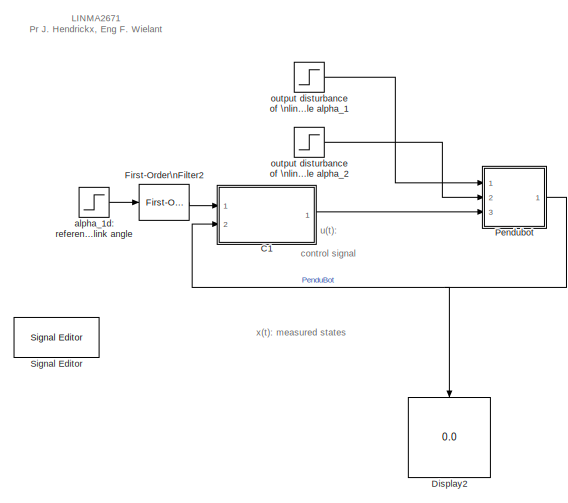
[diagram: root canvas - part 1/2, middle left region]
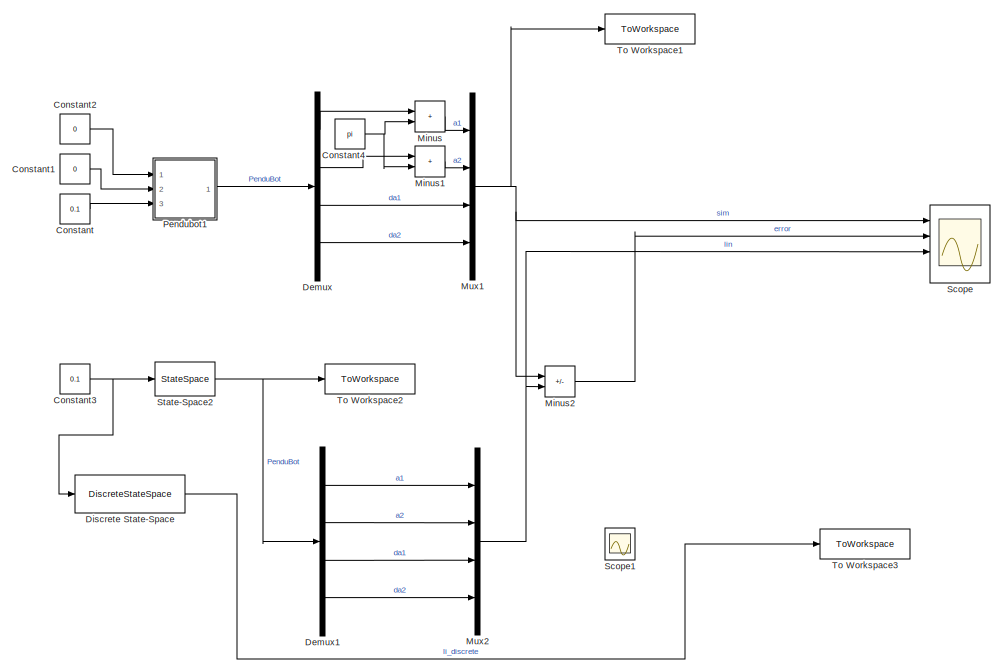
[diagram: root canvas - part 2/2, right side, full height]
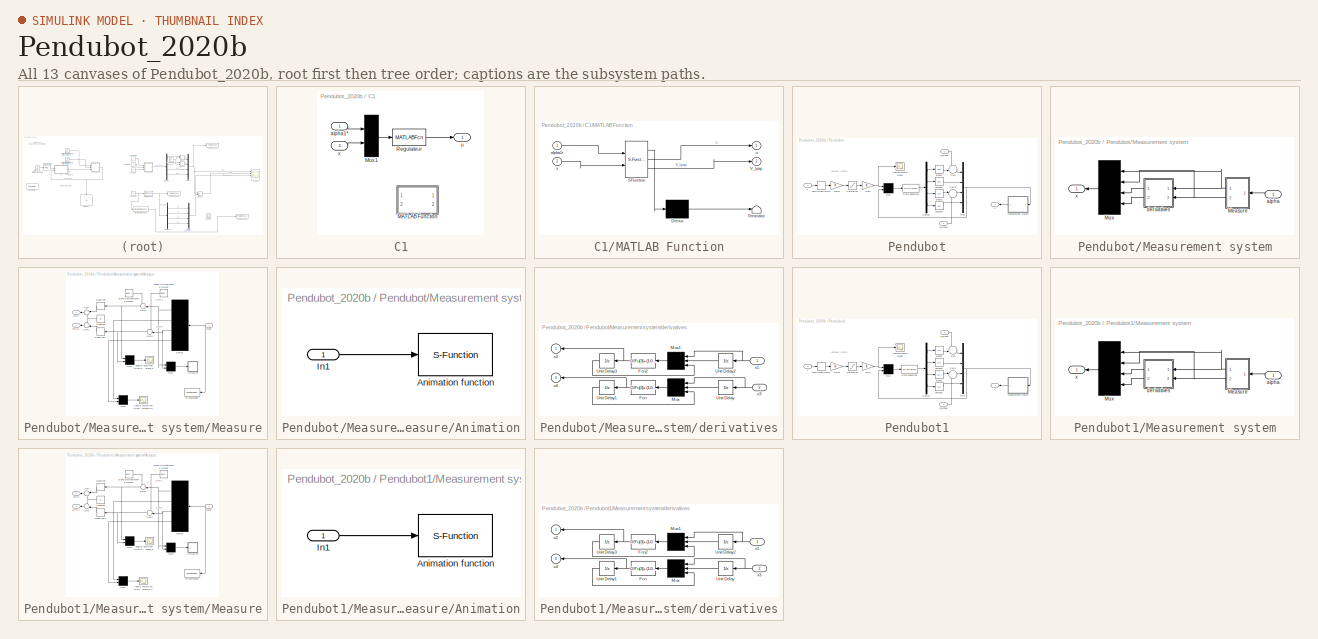
[diagram: thumbnail index - all 13 canvases of the model, root first then tree order]
MODEL Pendubot_2020b
KIND model
BLOCK [SubSystem] C1
  Ports = [2, 1]
  SID = 1
BLOCK [SubSystem] C1/MATLAB Function
  Commented = on
  ErrorFcn = Stateflow.Translate.translate
  PermitHierarchicalResolution = ExplicitOnly
  Ports = [2, 2]
  SFBlockType = MATLAB Function
  SID = 176
  TreatAsAtomicUnit = on
BLOCK [Demux] C1/MATLAB Function/ Demux 
  Outputs = 1
  Ports = [1, 1]
  SID = 176::26
BLOCK [S-Function] C1/MATLAB Function/ SFunction 
  EnableBusSupport = on
  FunctionName = sf_sfun
  PortCounts = [2 3]
  Ports = [2, 3]
  SFcnIsStateOwnerBlock = off
  SFunctionDeploymentMode = off
  SID = 176::25
  Tag = Stateflow S-Function 2
BLOCK [Terminator] C1/MATLAB Function/ Terminator 
  SID = 176::27
BLOCK [Outport] C1/MATLAB Function/V_lyap
  Port = 2
  SID = 176::29
BLOCK [Inport] C1/MATLAB Function/alpha1r
  SID = 176::1
BLOCK [Outport] C1/MATLAB Function/u
  SID = 176::5
BLOCK [Inport] C1/MATLAB Function/x
  Port = 2
  SID = 176::28
BLOCK [Mux] C1/Mux1
  Inputs = 2
  Ports = [2, 1]
  SID = 4
BLOCK [MATLABFcn] C1/Regulateur
  MATLABFcn = pendubot_reg(u(1),[u(2),u(3),u(4),u(5)])
  Ports = [1, 1]
  SID = 5
BLOCK [Inport] C1/alpha1*
  SID = 2
BLOCK [Outport] C1/u
  SID = 6
BLOCK [Inport] C1/x
  Port = 2
  SID = 3
BLOCK [Constant] Constant
  Commented = on
  SID = 143
  Value = 0.1
BLOCK [Constant] Constant1
  Commented = on
  SID = 144
  Value = 0
BLOCK [Constant] Constant2
  Commented = on
  SID = 145
  Value = 0
BLOCK [Constant] Constant3
  Commented = on
  SID = 147
  Value = 0.1
BLOCK [Constant] Constant4
  Commented = on
  SID = 155
  Value = pi
BLOCK [Demux] Demux
  Commented = on
  DisplayOption = none
  Ports = [1, 4]
  SID = 152
BLOCK [Demux] Demux1
  Commented = on
  DisplayOption = none
  Ports = [1, 4]
  SID = 159
BLOCK [DiscreteStateSpace] Discrete State-Space
  A = [0.9993,0.0004,0.004,0;0.0014,0.9987,0,0.004;-0.3693,0.2122,0.9993,0.0004;0.7023,-0.6366,0.0014,0.9987]
  B = [0.0004;-0.0007;0.1859;-0.3535]
  C = eye(4)
  Commented = on
  D = [0;0;0;0]
  SID = 167
  SampleTime = Ts
BLOCK [Display] Display2
  Decimation = 1
  NameLocation = left
  Ports = [1]
  SID = 296
BLOCK [Reference] First-Order\nFilter2  REF=powerlib_meascontrol/Filters/First-Order Filter
  FilterType = Lowpass
  FreqRange = [0,  200,  1]
  Initialize = on
  PlotResponse = off
  Ports = [1, 1]
  RTWMemSecDataConstants = Inherit from model
  RTWMemSecDataInternal = Inherit from model
  RTWMemSecDataParameters = Inherit from model
  RTWMemSecFuncExecute = Inherit from model
  RTWMemSecFuncInitTerm = Inherit from model
  SID = 172
  SourceBlock = powerlib_meascontrol/Filters/First-Order Filter
  SourceType = First-Order Filter
  Tc = 5
  Ts = 0
  Vac_Init = [0, 0, 60]
  Vdc_Init = 0
BLOCK [Sum] Minus
  Commented = on
  IconShape = rectangular
  Ports = [2, 1]
  SID = 154
BLOCK [Sum] Minus1
  Commented = on
  IconShape = rectangular
  Ports = [2, 1]
  SID = 156
BLOCK [Sum] Minus2
  Commented = on
  IconShape = rectangular
  Inputs = +-
  Ports = [2, 1]
  SID = 163
BLOCK [Mux] Mux1
  Commented = on
  DisplayOption = bar
  Ports = [4, 1]
  SID = 153
BLOCK [Mux] Mux2
  Commented = on
  DisplayOption = bar
  Ports = [4, 1]
  SID = 162
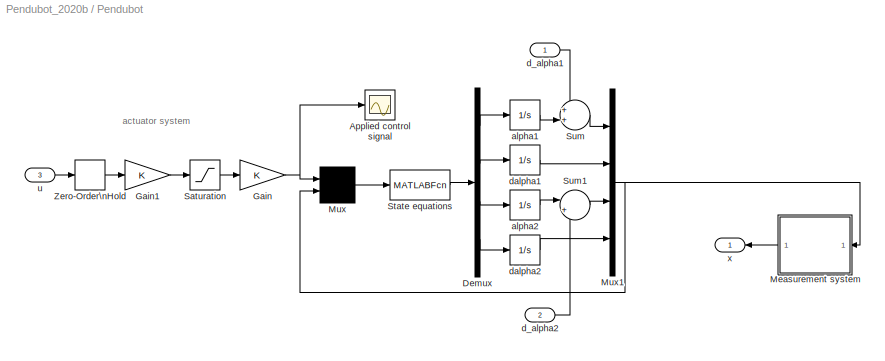
BLOCK [SubSystem] Pendubot
  Ports = [3, 1]
  SID = 7
BLOCK [Scope] Pendubot/Applied control signal
  Floating = off
  NumInputPorts = 1
  Ports = [1]
  SID = 11
  ScopeSpecificationString = Simulink.scopes.TimeScopeBlockCfg('CurrentConfiguration', extmgr.ConfigurationSet(extmgr.Configuration('Core','General UI',true),extmgr.Configuration('Core','Source UI',true),extmgr.Configuration('Sources','WiredSimulink',true,'DataLoggingLimitDataPoints',true,'DataLoggingSaveFormat','Array','DataLoggingDecimation','1','DataLoggingDecimateData',true),extmgr.Configuration('Visuals','Time Domain',tr...<+1637ch>
BLOCK [Demux] Pendubot/Demux
  DisplayOption = none
  Ports = [1, 4]
  SID = 12
BLOCK [Gain] Pendubot/Gain
  OutDataTypeStr = Inherit: Same as input
  ParamDataTypeStr = Inherit: Same as input
  SID = 13
  SaturateOnIntegerOverflow = on
BLOCK [Gain] Pendubot/Gain1
  OutDataTypeStr = Inherit: Same as input
  ParamDataTypeStr = Inherit: Same as input
  SID = 14
  SaturateOnIntegerOverflow = on
BLOCK [SubSystem] Pendubot/Measurement system
  Ports = [1, 1]
  SID = 15
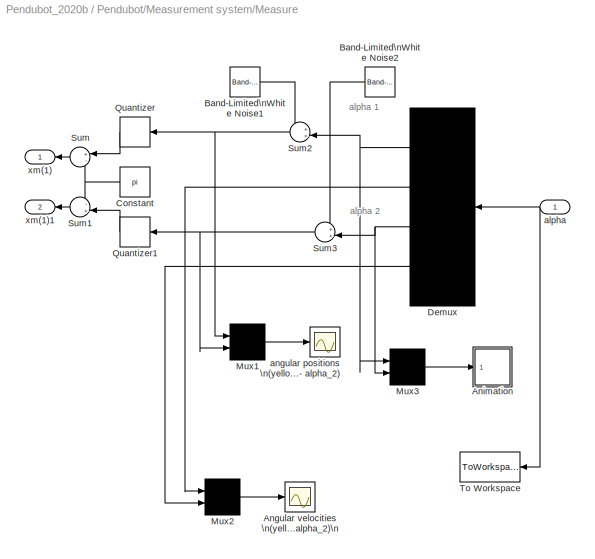
BLOCK [SubSystem] Pendubot/Measurement system/Measure
  Ports = [1, 2]
  SID = 17
BLOCK [Scope] Pendubot/Measurement system/Measure/Angular velocities \n(yellow - for alpha_1, \nmagenta - for alpha_2)\n
  Floating = off
  NumInputPorts = 1
  Ports = [1]
  SID = 19
  ScopeSpecificationString = C++SS(StrPVP('Location','[1351, 455, 1837, 694]'),StrPVP('Open','off'),StrPVP('TickLabels','on'),MxPVP('AxesTitles',54,'struct(''axes1'',''%<SignalLabel>'')'),StrPVP('ShowLegends','off'),StrPVP('YMin','-3.5'),StrPVP('YMax','3.5'),StrPVP('BlockParamSampleTime','0'),StrPVP('LimitDataPoints','on'),StrPVP('DataFormat','Array'),StrPVP('Decimation','1'),StrPVP('BlockParamSampleInput','off'))
BLOCK [SubSystem] Pendubot/Measurement system/Measure/Animation
  Ports = [1]
  SID = 20
BLOCK [S-Function] Pendubot/Measurement system/Measure/Animation/Animation function
  DeleteFcn = if ~isempty(findobj('type','figure','name','simppend Animation'));close('simppend Animation'); end;
  EnableBusSupport = off
  FunctionName = pendubotanim
  Parameters = ts
  Ports = [1]
  SFcnIsStateOwnerBlock = off
  SFunctionDeploymentMode = off
  SID = 22
BLOCK [Inport] Pendubot/Measurement system/Measure/Animation/In1
  SID = 21
BLOCK [Reference] Pendubot/Measurement system/Measure/Band-Limited\nWhite Noise1  REF=simulink/Sources/Band-Limited\nWhite Noise
  Cov = [1e-8]
  Ports = [0, 1]
  RTWMemSecDataConstants = Inherit from model
  RTWMemSecDataInternal = Inherit from model
  RTWMemSecDataParameters = Inherit from model
  RTWMemSecFuncExecute = Inherit from model
  RTWMemSecFuncInitTerm = Inherit from model
  SID = 23
  SourceBlock = simulink/Sources/Band-Limited\nWhite Noise
  SourceType = Band-Limited White Noise.
  Ts = Ts
  VectorParams1D = on
  seed = [23341]
BLOCK [Reference] Pendubot/Measurement system/Measure/Band-Limited\nWhite Noise2  REF=simulink/Sources/Band-Limited\nWhite Noise
  Cov = [1e-7]
  NameLocation = top
  Ports = [0, 1]
  RTWMemSecDataConstants = Inherit from model
  RTWMemSecDataInternal = Inherit from model
  RTWMemSecDataParameters = Inherit from model
  RTWMemSecFuncExecute = Inherit from model
  RTWMemSecFuncInitTerm = Inherit from model
  SID = 24
  SourceBlock = simulink/Sources/Band-Limited\nWhite Noise
  SourceType = Band-Limited White Noise.
  Ts = Ts
  VectorParams1D = on
  seed = [32214]
BLOCK [Constant] Pendubot/Measurement system/Measure/Constant
  SID = 25
  Value = pi
BLOCK [Demux] Pendubot/Measurement system/Measure/Demux
  DisplayOption = none
  Ports = [1, 4]
  SID = 26
BLOCK [Mux] Pendubot/Measurement system/Measure/Mux1
  Inputs = 2
  Ports = [2, 1]
  SID = 27
BLOCK [Mux] Pendubot/Measurement system/Measure/Mux2
  Inputs = 2
  Ports = [2, 1]
  SID = 28
BLOCK [Mux] Pendubot/Measurement system/Measure/Mux3
  Inputs = 2
  Ports = [2, 1]
  SID = 29
BLOCK [Quantizer] Pendubot/Measurement system/Measure/Quantizer
  QuantizationInterval = 2*pi/5000
  SID = 30
BLOCK [Quantizer] Pendubot/Measurement system/Measure/Quantizer1
  QuantizationInterval = 2*pi/5000
  SID = 31
BLOCK [Sum] Pendubot/Measurement system/Measure/Sum
  InputSameDT = on
  Inputs = +-
  OutDataTypeStr = Inherit: Same as first input
  Ports = [2, 1]
  SID = 32
  SaturateOnIntegerOverflow = on
BLOCK [Sum] Pendubot/Measurement system/Measure/Sum1
  InputSameDT = on
  Inputs = -+
  OutDataTypeStr = Inherit: Same as first input
  Ports = [2, 1]
  SID = 33
  SaturateOnIntegerOverflow = on
BLOCK [Sum] Pendubot/Measurement system/Measure/Sum2
  InputSameDT = on
  Inputs = ++|
  NameLocation = top
  OutDataTypeStr = Inherit: Same as first input
  Ports = [2, 1]
  SID = 34
  SaturateOnIntegerOverflow = on
BLOCK [Sum] Pendubot/Measurement system/Measure/Sum3
  InputSameDT = on
  Inputs = ++|
  NameLocation = top
  OutDataTypeStr = Inherit: Same as first input
  Ports = [2, 1]
  SID = 35
  SaturateOnIntegerOverflow = on
BLOCK [ToWorkspace] Pendubot/Measurement system/Measure/To Workspace
  MaxDataPoints = inf
  Ports = [1]
  SID = 36
  SampleTime = Ts
  VariableName = alpha
BLOCK [Inport] Pendubot/Measurement system/Measure/alpha
  SID = 18
BLOCK [Scope] Pendubot/Measurement system/Measure/angular positions \n(yellow - alpha_1, \nmagenta - alpha_2)
  Floating = off
  NumInputPorts = 1
  Ports = [1]
  SID = 37
  ScopeSpecificationString = C++SS(StrPVP('Location','[881, 350, 1368, 572]'),StrPVP('Open','off'),StrPVP('TickLabels','on'),MxPVP('AxesTitles',54,'struct(''axes1'',''%<SignalLabel>'')'),StrPVP('ShowLegends','off'),StrPVP('YMin','1.5'),StrPVP('YMax','6'),StrPVP('BlockParamSampleTime','0'),StrPVP('LimitDataPoints','on'),StrPVP('DataFormat','Array'),StrPVP('Decimation','1'),StrPVP('BlockParamSampleInput','off'))
BLOCK [Outport] Pendubot/Measurement system/Measure/xm(1)
  SID = 38
  Tag = alpha1
BLOCK [Outport] Pendubot/Measurement system/Measure/xm(1)1
  Port = 2
  SID = 39
BLOCK [Mux] Pendubot/Measurement system/Mux
  Ports = [4, 1]
  SID = 42
BLOCK [Inport] Pendubot/Measurement system/alpha
  SID = 16
BLOCK [SubSystem] Pendubot/Measurement system/derivatives
  Ports = [2, 2]
  SID = 43
BLOCK [Fcn] Pendubot/Measurement system/derivatives/Fcn
  Expr = 0.9*u[3]+(1-0.9)/0.003*(u[1]-u[2])
  SID = 46
BLOCK [Fcn] Pendubot/Measurement system/derivatives/Fcn2
  Expr = 0.9*u[3]+(1-0.9)/0.003*(u[1]-u[2])
  SID = 47
BLOCK [Mux] Pendubot/Measurement system/derivatives/Mux
  Inputs = 3
  Ports = [3, 1]
  SID = 48
BLOCK [Mux] Pendubot/Measurement system/derivatives/Mux1
  Inputs = 3
  Ports = [3, 1]
  SID = 49
BLOCK [UnitDelay] Pendubot/Measurement system/derivatives/Unit Delay
  HasFrameUpgradeWarning = on
  SID = 50
  SampleTime = Ts
BLOCK [UnitDelay] Pendubot/Measurement system/derivatives/Unit Delay1
  HasFrameUpgradeWarning = on
  SID = 51
  SampleTime = Ts
BLOCK [UnitDelay] Pendubot/Measurement system/derivatives/Unit Delay2
  HasFrameUpgradeWarning = on
  SID = 52
  SampleTime = Ts
BLOCK [UnitDelay] Pendubot/Measurement system/derivatives/Unit Delay3
  HasFrameUpgradeWarning = on
  SID = 53
  SampleTime = Ts
BLOCK [Inport] Pendubot/Measurement system/derivatives/x1
  SID = 44
BLOCK [Outport] Pendubot/Measurement system/derivatives/x2
  SID = 54
BLOCK [Inport] Pendubot/Measurement system/derivatives/x3
  Port = 2
  SID = 45
BLOCK [Outport] Pendubot/Measurement system/derivatives/x4
  Port = 2
  SID = 55
BLOCK [Outport] Pendubot/Measurement system/x
  SID = 56
BLOCK [Mux] Pendubot/Mux
  Inputs = 2
  Ports = [2, 1]
  SID = 57
BLOCK [Mux] Pendubot/Mux1
  DisplayOption = bar
  Ports = [4, 1]
  SID = 58
BLOCK [Saturate] Pendubot/Saturation
  LowerLimit = -10
  SID = 59
  UpperLimit = 10
BLOCK [MATLABFcn] Pendubot/State equations
  MATLABFcn = pendubot_eqt(u(1),[u(2);u(3);u(4);u(5)])
  OutputDimensions = 4
  Ports = [1, 1]
  SID = 60
BLOCK [Sum] Pendubot/Sum
  InputSameDT = on
  Inputs = ++|
  OutDataTypeStr = Inherit: Same as first input
  Ports = [2, 1]
  SID = 61
  SaturateOnIntegerOverflow = on
BLOCK [Sum] Pendubot/Sum1
  InputSameDT = on
  Inputs = |++
  OutDataTypeStr = Inherit: Same as first input
  Ports = [2, 1]
  SID = 62
  SaturateOnIntegerOverflow = on
BLOCK [ZeroOrderHold] Pendubot/Zero-Order\nHold
  SID = 63
  SampleTime = Ts
BLOCK [Integrator] Pendubot/alpha1
  InitialCondition = x10
  Ports = [1, 1]
  SID = 64
BLOCK [Integrator] Pendubot/alpha2
  InitialCondition = x30
  Ports = [1, 1]
  SID = 65
BLOCK [Inport] Pendubot/d_alpha1
  SID = 8
BLOCK [Inport] Pendubot/d_alpha2
  Port = 2
  SID = 9
BLOCK [Integrator] Pendubot/dalpha1
  InitialCondition = x20
  Ports = [1, 1]
  SID = 66
BLOCK [Integrator] Pendubot/dalpha2
  InitialCondition = x40
  Ports = [1, 1]
  SID = 67
BLOCK [Inport] Pendubot/u
  Port = 3
  SID = 10
BLOCK [Outport] Pendubot/x
  SID = 68
BLOCK [SubSystem] Pendubot1
  Commented = on
  Ports = [3, 1]
  SID = 80
BLOCK [Scope] Pendubot1/Applied control signal
  Floating = off
  NumInputPorts = 1
  Ports = [1]
  SID = 84
  ScopeSpecificationString = Simulink.scopes.TimeScopeBlockCfg('CurrentConfiguration', extmgr.ConfigurationSet(extmgr.Configuration('Core','General UI',true),extmgr.Configuration('Core','Source UI',true),extmgr.Configuration('Sources','WiredSimulink',true,'DataLoggingLimitDataPoints',true,'DataLoggingSaveFormat','Array','DataLoggingDecimation','1','DataLoggingDecimateData',true),extmgr.Configuration('Visuals','Time Domain',tr...<+1637ch>
BLOCK [Demux] Pendubot1/Demux
  DisplayOption = none
  Ports = [1, 4]
  SID = 85
BLOCK [Gain] Pendubot1/Gain
  OutDataTypeStr = Inherit: Same as input
  ParamDataTypeStr = Inherit: Same as input
  SID = 86
  SaturateOnIntegerOverflow = on
BLOCK [Gain] Pendubot1/Gain1
  OutDataTypeStr = Inherit: Same as input
  ParamDataTypeStr = Inherit: Same as input
  SID = 87
  SaturateOnIntegerOverflow = on
BLOCK [SubSystem] Pendubot1/Measurement system
  Ports = [1, 1]
  SID = 88
BLOCK [SubSystem] Pendubot1/Measurement system/Measure
  Ports = [1, 2]
  SID = 90
BLOCK [Scope] Pendubot1/Measurement system/Measure/Angular velocities \n(yellow - for alpha_1, \nmagenta - for alpha_2)\n
  Floating = off
  NumInputPorts = 1
  Ports = [1]
  SID = 92
  ScopeSpecificationString = C++SS(StrPVP('Location','[1351, 455, 1837, 694]'),StrPVP('Open','off'),StrPVP('TickLabels','on'),MxPVP('AxesTitles',54,'struct(''axes1'',''%<SignalLabel>'')'),StrPVP('ShowLegends','off'),StrPVP('YMin','-3.5'),StrPVP('YMax','3.5'),StrPVP('BlockParamSampleTime','0'),StrPVP('LimitDataPoints','on'),StrPVP('DataFormat','Array'),StrPVP('Decimation','1'),StrPVP('BlockParamSampleInput','off'))
BLOCK [SubSystem] Pendubot1/Measurement system/Measure/Animation
  Ports = [1]
  SID = 93
BLOCK [S-Function] Pendubot1/Measurement system/Measure/Animation/Animation function
  DeleteFcn = if ~isempty(findobj('type','figure','name','simppend Animation'));close('simppend Animation'); end;
  EnableBusSupport = off
  FunctionName = pendubotanim
  Parameters = ts
  Ports = [1]
  SFcnIsStateOwnerBlock = off
  SFunctionDeploymentMode = off
  SID = 95
BLOCK [Inport] Pendubot1/Measurement system/Measure/Animation/In1
  SID = 94
BLOCK [Reference] Pendubot1/Measurement system/Measure/Band-Limited\nWhite Noise1  REF=simulink/Sources/Band-Limited\nWhite Noise
  Cov = [1e-8]
  Ports = [0, 1]
  RTWMemSecDataConstants = Inherit from model
  RTWMemSecDataInternal = Inherit from model
  RTWMemSecDataParameters = Inherit from model
  RTWMemSecFuncExecute = Inherit from model
  RTWMemSecFuncInitTerm = Inherit from model
  SID = 96
  SourceBlock = simulink/Sources/Band-Limited\nWhite Noise
  SourceType = Band-Limited White Noise.
  Ts = Ts
  VectorParams1D = on
  seed = [23341]
BLOCK [Reference] Pendubot1/Measurement system/Measure/Band-Limited\nWhite Noise2  REF=simulink/Sources/Band-Limited\nWhite Noise
  Cov = [1e-7]
  NameLocation = top
  Ports = [0, 1]
  RTWMemSecDataConstants = Inherit from model
  RTWMemSecDataInternal = Inherit from model
  RTWMemSecDataParameters = Inherit from model
  RTWMemSecFuncExecute = Inherit from model
  RTWMemSecFuncInitTerm = Inherit from model
  SID = 97
  SourceBlock = simulink/Sources/Band-Limited\nWhite Noise
  SourceType = Band-Limited White Noise.
  Ts = Ts
  VectorParams1D = on
  seed = [32214]
BLOCK [Constant] Pendubot1/Measurement system/Measure/Constant
  SID = 98
  Value = pi
BLOCK [Demux] Pendubot1/Measurement system/Measure/Demux
  DisplayOption = none
  Ports = [1, 4]
  SID = 99
BLOCK [Mux] Pendubot1/Measurement system/Measure/Mux1
  Inputs = 2
  Ports = [2, 1]
  SID = 100
BLOCK [Mux] Pendubot1/Measurement system/Measure/Mux2
  Inputs = 2
  Ports = [2, 1]
  SID = 101
BLOCK [Mux] Pendubot1/Measurement system/Measure/Mux3
  Inputs = 2
  Ports = [2, 1]
  SID = 102
BLOCK [Quantizer] Pendubot1/Measurement system/Measure/Quantizer
  QuantizationInterval = 2*pi/5000
  SID = 103
BLOCK [Quantizer] Pendubot1/Measurement system/Measure/Quantizer1
  QuantizationInterval = 2*pi/5000
  SID = 104
BLOCK [Sum] Pendubot1/Measurement system/Measure/Sum
  InputSameDT = on
  Inputs = +-
  OutDataTypeStr = Inherit: Same as first input
  Ports = [2, 1]
  SID = 105
  SaturateOnIntegerOverflow = on
BLOCK [Sum] Pendubot1/Measurement system/Measure/Sum1
  InputSameDT = on
  Inputs = -+
  OutDataTypeStr = Inherit: Same as first input
  Ports = [2, 1]
  SID = 106
  SaturateOnIntegerOverflow = on
BLOCK [Sum] Pendubot1/Measurement system/Measure/Sum2
  InputSameDT = on
  Inputs = ++|
  NameLocation = top
  OutDataTypeStr = Inherit: Same as first input
  Ports = [2, 1]
  SID = 107
  SaturateOnIntegerOverflow = on
BLOCK [Sum] Pendubot1/Measurement system/Measure/Sum3
  InputSameDT = on
  Inputs = ++|
  NameLocation = top
  OutDataTypeStr = Inherit: Same as first input
  Ports = [2, 1]
  SID = 108
  SaturateOnIntegerOverflow = on
BLOCK [ToWorkspace] Pendubot1/Measurement system/Measure/To Workspace
  MaxDataPoints = inf
  Ports = [1]
  SID = 109
  SampleTime = Ts
  VariableName = alpha
BLOCK [Inport] Pendubot1/Measurement system/Measure/alpha
  SID = 91
BLOCK [Scope] Pendubot1/Measurement system/Measure/angular positions \n(yellow - alpha_1, \nmagenta - alpha_2)
  Floating = off
  NumInputPorts = 1
  Ports = [1]
  SID = 110
  ScopeSpecificationString = C++SS(StrPVP('Location','[881, 350, 1368, 572]'),StrPVP('Open','off'),StrPVP('TickLabels','on'),MxPVP('AxesTitles',54,'struct(''axes1'',''%<SignalLabel>'')'),StrPVP('ShowLegends','off'),StrPVP('YMin','1.5'),StrPVP('YMax','6'),StrPVP('BlockParamSampleTime','0'),StrPVP('LimitDataPoints','on'),StrPVP('DataFormat','Array'),StrPVP('Decimation','1'),StrPVP('BlockParamSampleInput','off'))
BLOCK [Outport] Pendubot1/Measurement system/Measure/xm(1)
  SID = 111
  Tag = alpha1
BLOCK [Outport] Pendubot1/Measurement system/Measure/xm(1)1
  Port = 2
  SID = 112
BLOCK [Mux] Pendubot1/Measurement system/Mux
  Ports = [4, 1]
  SID = 115
BLOCK [Inport] Pendubot1/Measurement system/alpha
  SID = 89
BLOCK [SubSystem] Pendubot1/Measurement system/derivatives
  Ports = [2, 2]
  SID = 116
BLOCK [Fcn] Pendubot1/Measurement system/derivatives/Fcn
  Expr = 0.9*u[3]+(1-0.9)/0.003*(u[1]-u[2])
  SID = 119
BLOCK [Fcn] Pendubot1/Measurement system/derivatives/Fcn2
  Expr = 0.9*u[3]+(1-0.9)/0.003*(u[1]-u[2])
  SID = 120
BLOCK [Mux] Pendubot1/Measurement system/derivatives/Mux
  Inputs = 3
  Ports = [3, 1]
  SID = 121
BLOCK [Mux] Pendubot1/Measurement system/derivatives/Mux1
  Inputs = 3
  Ports = [3, 1]
  SID = 122
BLOCK [UnitDelay] Pendubot1/Measurement system/derivatives/Unit Delay
  HasFrameUpgradeWarning = on
  SID = 123
  SampleTime = Ts
BLOCK [UnitDelay] Pendubot1/Measurement system/derivatives/Unit Delay1
  HasFrameUpgradeWarning = on
  SID = 124
  SampleTime = Ts
BLOCK [UnitDelay] Pendubot1/Measurement system/derivatives/Unit Delay2
  HasFrameUpgradeWarning = on
  SID = 125
  SampleTime = Ts
BLOCK [UnitDelay] Pendubot1/Measurement system/derivatives/Unit Delay3
  HasFrameUpgradeWarning = on
  SID = 126
  SampleTime = Ts
BLOCK [Inport] Pendubot1/Measurement system/derivatives/x1
  SID = 117
BLOCK [Outport] Pendubot1/Measurement system/derivatives/x2
  SID = 127
BLOCK [Inport] Pendubot1/Measurement system/derivatives/x3
  Port = 2
  SID = 118
BLOCK [Outport] Pendubot1/Measurement system/derivatives/x4
  Port = 2
  SID = 128
BLOCK [Outport] Pendubot1/Measurement system/x
  SID = 129
BLOCK [Mux] Pendubot1/Mux
  Inputs = 2
  Ports = [2, 1]
  SID = 130
BLOCK [Mux] Pendubot1/Mux1
  DisplayOption = bar
  Ports = [4, 1]
  SID = 131
BLOCK [Saturate] Pendubot1/Saturation
  LowerLimit = -10
  SID = 132
  UpperLimit = 10
BLOCK [MATLABFcn] Pendubot1/State equations
  MATLABFcn = pendubot_eqt(u(1),[u(2);u(3);u(4);u(5)])
  OutputDimensions = 4
  Ports = [1, 1]
  SID = 133
BLOCK [Sum] Pendubot1/Sum
  InputSameDT = on
  Inputs = ++|
  OutDataTypeStr = Inherit: Same as first input
  Ports = [2, 1]
  SID = 134
  SaturateOnIntegerOverflow = on
BLOCK [Sum] Pendubot1/Sum1
  InputSameDT = on
  Inputs = |++
  OutDataTypeStr = Inherit: Same as first input
  Ports = [2, 1]
  SID = 135
  SaturateOnIntegerOverflow = on
BLOCK [ZeroOrderHold] Pendubot1/Zero-Order\nHold
  SID = 136
  SampleTime = Ts
BLOCK [Integrator] Pendubot1/alpha1
  InitialCondition = x10
  Ports = [1, 1]
  SID = 137
BLOCK [Integrator] Pendubot1/alpha2
  InitialCondition = x30
  Ports = [1, 1]
  SID = 138
BLOCK [Inport] Pendubot1/d_alpha1
  SID = 81
BLOCK [Inport] Pendubot1/d_alpha2
  Port = 2
  SID = 82
BLOCK [Integrator] Pendubot1/dalpha1
  InitialCondition = x20
  Ports = [1, 1]
  SID = 139
BLOCK [Integrator] Pendubot1/dalpha2
  InitialCondition = x40
  Ports = [1, 1]
  SID = 140
BLOCK [Inport] Pendubot1/u
  Port = 3
  SID = 83
BLOCK [Outport] Pendubot1/x
  SID = 141
BLOCK [Scope] Scope
  Commented = on
  Floating = off
  NumInputPorts = 4
  Ports = [4]
  SID = 166
  ScopeSpecificationString = Simulink.scopes.TimeScopeBlockCfg('CurrentConfiguration', extmgr.ConfigurationSet(extmgr.Configuration('Core','General UI',true),extmgr.Configuration('Core','Source UI',true),extmgr.Configuration('Sources','WiredSimulink',true,'DataLoggingSaveFormat','StructureWithTime','DataLoggingMaxPoints','100000','DataLoggingDecimation','10','DataLoggingDecimateData',true,'DataLoggingLimitDataPoints',true,'Da...<+3348ch>
BLOCK [Scope] Scope1
  Commented = on
  Floating = off
  NumInputPorts = 1
  Ports = [1]
  SID = 150
  ScopeSpecificationString = Simulink.scopes.TimeScopeBlockCfg('CurrentConfiguration', extmgr.ConfigurationSet(extmgr.Configuration('Core','General UI',true),extmgr.Configuration('Core','Source UI',true),extmgr.Configuration('Sources','WiredSimulink',true,'DataLoggingVariableName','ScopeData2'),extmgr.Configuration('Visuals','Time Domain',true,'SerializedDisplays',{struct('MinYLimReal','-5.03575','MaxYLimReal','11.63091','YLa...<+1483ch>
BLOCK [Reference] Signal Editor  REF=SignalEditorBlockLib/Signal Editor
  ActiveScenario = Scenario
  ActiveSignal = Signal 1
  Commented = on
  FileName = untitled.mat
  Interpolate = off
  IsBus = off
  OutputAfterFinalValue = Setting to zero
  OutputBusObjectStr = Bus: BusObject
  Ports = [0, 1]
  PreserveSignalName = on
  RTWMemSecDataConstants = Inherit from model
  RTWMemSecDataInternal = Inherit from model
  RTWMemSecDataParameters = Inherit from model
  RTWMemSecFuncExecute = Inherit from model
  RTWMemSecFuncInitTerm = Inherit from model
  SID = 174
  SampleTime = 0
  SourceBlock = SignalEditorBlockLib/Signal Editor
  SourceType = SignalEditor
  Unit = inherit
  UserData = DataTag0
  UserDataPersistent = on
  ZeroCross = off
BLOCK [StateSpace] State-Space2
  A = [0,0,1,0;0,0,0,1;57.9843,-34.6580,0,0;-87.489,105.4244,0,0]
  B = [0;0;40.9835;-70.8893]
  C = eye(4)
  Commented = on
  D = [0;0;0;0]
  InitialCondition = [0;0;0;0]
  Ports = [1, 1]
  SID = 169
BLOCK [ToWorkspace] To Workspace1
  Commented = on
  FixptAsFi = on
  MaxDataPoints = inf
  Ports = [1]
  SID = 79
  SampleTime = Ts
  SaveFormat = Timeseries
  VariableName = simulator_x
BLOCK [ToWorkspace] To Workspace2
  Commented = on
  FixptAsFi = on
  MaxDataPoints = inf
  Ports = [1]
  SID = 148
  SampleTime = Ts
  SaveFormat = Timeseries
  VariableName = linearized_around_0_y
BLOCK [ToWorkspace] To Workspace3
  Commented = on
  FixptAsFi = on
  MaxDataPoints = inf
  Ports = [1]
  SID = 168
  SampleTime = Ts
  SaveFormat = Timeseries
  VariableName = discrete_linearized_around_0_y1
BLOCK [Step] alpha_1d: reference \nfor first link angle 
  After = 4*pi/5
  SID = 70
  SampleTime = Ts
  Time = 2
BLOCK [Step] output disturbance of \nlink 1 angle alpha_1
  After = 0
  SID = 71
  SampleTime = Ts
  Time = 5
BLOCK [Step] output disturbance of \nlink 2 angle alpha_2
  After = 0
  SID = 72
  SampleTime = Ts
  Time = 2
ANNOTATION (root): \n \n x(t): measured states
ANNOTATION (root): LINMA2671\nPr J. Hendrickx, Eng F. Wielant
ANNOTATION (root): u(t): \ncontrol signal
ANNOTATION Pendubot: actuator system
ANNOTATION Pendubot/Measurement system/Measure: alpha 1
ANNOTATION Pendubot/Measurement system/Measure: alpha 2
ANNOTATION Pendubot1: actuator system
ANNOTATION Pendubot1/Measurement system/Measure: alpha 1
ANNOTATION Pendubot1/Measurement system/Measure: alpha 2
LINE C1/MATLAB Function/ Demux :1 -> C1/MATLAB Function/ Terminator :1
LINE C1/MATLAB Function/ SFunction :1 -> C1/MATLAB Function/ Demux :1
LINE C1/MATLAB Function/ SFunction :2 -> C1/MATLAB Function/u:1
LINE C1/MATLAB Function/ SFunction :3 -> C1/MATLAB Function/V_lyap:1
LINE C1/MATLAB Function/alpha1r:1 -> C1/MATLAB Function/ SFunction :1
LINE C1/MATLAB Function/x:1 -> C1/MATLAB Function/ SFunction :2
LINE C1/Mux1:1 -> C1/Regulateur:1
LINE C1/Regulateur:1 -> C1/u:1
LINE C1/alpha1*:1 -> C1/Mux1:1
LINE C1/x:1 -> C1/Mux1:2
LINE C1:1 -> Pendubot:3
LINE Constant1:1 -> Pendubot1:2
LINE Constant2:1 -> Pendubot1:1
NET Constant3:1 -> Discrete State-Space:1, State-Space2:1
NET Constant4:1 -> Minus1:2, Minus:2
LINE Constant:1 -> Pendubot1:3
LINE Demux1:1 -> Mux2:1
LINE Demux1:2 -> Mux2:2
LINE Demux1:3 -> Mux2:3
LINE Demux1:4 -> Mux2:4
LINE Demux:1 -> Minus:1
LINE Demux:2 -> Minus1:1
LINE Demux:3 -> Mux1:3
LINE Demux:4 -> Mux1:4
LINE Discrete State-Space:1 -> To Workspace3:1
LINE First-Order\nFilter2:1 -> C1:1
LINE Minus1:1 -> Mux1:2
LINE Minus2:1 -> Scope:2
LINE Minus:1 -> Mux1:1
NET Mux1:1 -> Minus2:1, Scope:1, To Workspace1:1
NET Mux2:1 -> Minus2:2, Scope:3
LINE Pendubot/Demux:1 -> Pendubot/alpha1:1
LINE Pendubot/Demux:2 -> Pendubot/dalpha1:1
LINE Pendubot/Demux:3 -> Pendubot/alpha2:1
LINE Pendubot/Demux:4 -> Pendubot/dalpha2:1
LINE Pendubot/Gain1:1 -> Pendubot/Saturation:1
NET Pendubot/Gain:1 -> Pendubot/Applied control signal:1, Pendubot/Mux:1
LINE Pendubot/Measurement system/Measure/Animation/In1:1 -> Pendubot/Measurement system/Measure/Animation/Animation function:1
LINE Pendubot/Measurement system/Measure/Band-Limited\nWhite Noise1:1 -> Pendubot/Measurement system/Measure/Sum2:1
LINE Pendubot/Measurement system/Measure/Band-Limited\nWhite Noise2:1 -> Pendubot/Measurement system/Measure/Sum3:1
NET Pendubot/Measurement system/Measure/Constant:1 -> Pendubot/Measurement system/Measure/Sum1:1, Pendubot/Measurement system/Measure/Sum:2
NET Pendubot/Measurement system/Measure/Demux:1 -> Pendubot/Measurement system/Measure/Mux3:1, Pendubot/Measurement system/Measure/Sum2:2
LINE Pendubot/Measurement system/Measure/Demux:2 -> Pendubot/Measurement system/Measure/Mux2:1
NET Pendubot/Measurement system/Measure/Demux:3 -> Pendubot/Measurement system/Measure/Mux3:2, Pendubot/Measurement system/Measure/Sum3:2
LINE Pendubot/Measurement system/Measure/Demux:4 -> Pendubot/Measurement system/Measure/Mux2:2
LINE Pendubot/Measurement system/Measure/Mux1:1 -> Pendubot/Measurement system/Measure/angular positions \n(yellow - alpha_1, \nmagenta - alpha_2):1
LINE Pendubot/Measurement system/Measure/Mux2:1 -> Pendubot/Measurement system/Measure/Angular velocities \n(yellow - for alpha_1, \nmagenta - for alpha_2)\n:1
LINE Pendubot/Measurement system/Measure/Mux3:1 -> Pendubot/Measurement system/Measure/Animation:1
LINE Pendubot/Measurement system/Measure/Quantizer1:1 -> Pendubot/Measurement system/Measure/Sum1:2
LINE Pendubot/Measurement system/Measure/Quantizer:1 -> Pendubot/Measurement system/Measure/Sum:1
LINE Pendubot/Measurement system/Measure/Sum1:1 -> Pendubot/Measurement system/Measure/xm(1)1:1
NET Pendubot/Measurement system/Measure/Sum2:1 -> Pendubot/Measurement system/Measure/Mux1:1, Pendubot/Measurement system/Measure/Quantizer:1
NET Pendubot/Measurement system/Measure/Sum3:1 -> Pendubot/Measurement system/Measure/Mux1:2, Pendubot/Measurement system/Measure/Quantizer1:1
LINE Pendubot/Measurement system/Measure/Sum:1 -> Pendubot/Measurement system/Measure/xm(1):1
NET Pendubot/Measurement system/Measure/alpha:1 -> Pendubot/Measurement system/Measure/Demux:1, Pendubot/Measurement system/Measure/To Workspace:1
NET Pendubot/Measurement system/Measure:1 -> Pendubot/Measurement system/Mux:1, Pendubot/Measurement system/derivatives:1
NET Pendubot/Measurement system/Measure:2 -> Pendubot/Measurement system/Mux:2, Pendubot/Measurement system/derivatives:2
LINE Pendubot/Measurement system/Mux:1 -> Pendubot/Measurement system/x:1
LINE Pendubot/Measurement system/alpha:1 -> Pendubot/Measurement system/Measure:1
NET Pendubot/Measurement system/derivatives/Fcn2:1 -> Pendubot/Measurement system/derivatives/Unit Delay3:1, Pendubot/Measurement system/derivatives/x2:1
NET Pendubot/Measurement system/derivatives/Fcn:1 -> Pendubot/Measurement system/derivatives/Unit Delay1:1, Pendubot/Measurement system/derivatives/x4:1
LINE Pendubot/Measurement system/derivatives/Mux1:1 -> Pendubot/Measurement system/derivatives/Fcn2:1
LINE Pendubot/Measurement system/derivatives/Mux:1 -> Pendubot/Measurement system/derivatives/Fcn:1
LINE Pendubot/Measurement system/derivatives/Unit Delay1:1 -> Pendubot/Measurement system/derivatives/Mux:3
LINE Pendubot/Measurement system/derivatives/Unit Delay2:1 -> Pendubot/Measurement system/derivatives/Mux1:2
LINE Pendubot/Measurement system/derivatives/Unit Delay3:1 -> Pendubot/Measurement system/derivatives/Mux1:3
LINE Pendubot/Measurement system/derivatives/Unit Delay:1 -> Pendubot/Measurement system/derivatives/Mux:2
NET Pendubot/Measurement system/derivatives/x1:1 -> Pendubot/Measurement system/derivatives/Mux1:1, Pendubot/Measurement system/derivatives/Unit Delay2:1
NET Pendubot/Measurement system/derivatives/x3:1 -> Pendubot/Measurement system/derivatives/Mux:1, Pendubot/Measurement system/derivatives/Unit Delay:1
LINE Pendubot/Measurement system/derivatives:1 -> Pendubot/Measurement system/Mux:3
LINE Pendubot/Measurement system/derivatives:2 -> Pendubot/Measurement system/Mux:4
LINE Pendubot/Measurement system:1 -> Pendubot/x:1
NET Pendubot/Mux1:1 -> Pendubot/Measurement system:1, Pendubot/Mux:2
LINE Pendubot/Mux:1 -> Pendubot/State equations:1
LINE Pendubot/Saturation:1 -> Pendubot/Gain:1
LINE Pendubot/State equations:1 -> Pendubot/Demux:1
LINE Pendubot/Sum1:1 -> Pendubot/Mux1:3
LINE Pendubot/Sum:1 -> Pendubot/Mux1:1
LINE Pendubot/Zero-Order\nHold:1 -> Pendubot/Gain1:1
LINE Pendubot/alpha1:1 -> Pendubot/Sum:2
LINE Pendubot/alpha2:1 -> Pendubot/Sum1:1
LINE Pendubot/d_alpha1:1 -> Pendubot/Sum:1
LINE Pendubot/d_alpha2:1 -> Pendubot/Sum1:2
LINE Pendubot/dalpha1:1 -> Pendubot/Mux1:2
LINE Pendubot/dalpha2:1 -> Pendubot/Mux1:4
LINE Pendubot/u:1 -> Pendubot/Zero-Order\nHold:1
LINE Pendubot1/Demux:1 -> Pendubot1/alpha1:1
LINE Pendubot1/Demux:2 -> Pendubot1/dalpha1:1
LINE Pendubot1/Demux:3 -> Pendubot1/alpha2:1
LINE Pendubot1/Demux:4 -> Pendubot1/dalpha2:1
LINE Pendubot1/Gain1:1 -> Pendubot1/Saturation:1
NET Pendubot1/Gain:1 -> Pendubot1/Applied control signal:1, Pendubot1/Mux:1
LINE Pendubot1/Measurement system/Measure/Animation/In1:1 -> Pendubot1/Measurement system/Measure/Animation/Animation function:1
LINE Pendubot1/Measurement system/Measure/Band-Limited\nWhite Noise1:1 -> Pendubot1/Measurement system/Measure/Sum2:1
LINE Pendubot1/Measurement system/Measure/Band-Limited\nWhite Noise2:1 -> Pendubot1/Measurement system/Measure/Sum3:1
NET Pendubot1/Measurement system/Measure/Constant:1 -> Pendubot1/Measurement system/Measure/Sum1:1, Pendubot1/Measurement system/Measure/Sum:2
NET Pendubot1/Measurement system/Measure/Demux:1 -> Pendubot1/Measurement system/Measure/Mux3:1, Pendubot1/Measurement system/Measure/Sum2:2
LINE Pendubot1/Measurement system/Measure/Demux:2 -> Pendubot1/Measurement system/Measure/Mux2:1
NET Pendubot1/Measurement system/Measure/Demux:3 -> Pendubot1/Measurement system/Measure/Mux3:2, Pendubot1/Measurement system/Measure/Sum3:2
LINE Pendubot1/Measurement system/Measure/Demux:4 -> Pendubot1/Measurement system/Measure/Mux2:2
LINE Pendubot1/Measurement system/Measure/Mux1:1 -> Pendubot1/Measurement system/Measure/angular positions \n(yellow - alpha_1, \nmagenta - alpha_2):1
LINE Pendubot1/Measurement system/Measure/Mux2:1 -> Pendubot1/Measurement system/Measure/Angular velocities \n(yellow - for alpha_1, \nmagenta - for alpha_2)\n:1
LINE Pendubot1/Measurement system/Measure/Mux3:1 -> Pendubot1/Measurement system/Measure/Animation:1
LINE Pendubot1/Measurement system/Measure/Quantizer1:1 -> Pendubot1/Measurement system/Measure/Sum1:2
LINE Pendubot1/Measurement system/Measure/Quantizer:1 -> Pendubot1/Measurement system/Measure/Sum:1
LINE Pendubot1/Measurement system/Measure/Sum1:1 -> Pendubot1/Measurement system/Measure/xm(1)1:1
NET Pendubot1/Measurement system/Measure/Sum2:1 -> Pendubot1/Measurement system/Measure/Mux1:1, Pendubot1/Measurement system/Measure/Quantizer:1
NET Pendubot1/Measurement system/Measure/Sum3:1 -> Pendubot1/Measurement system/Measure/Mux1:2, Pendubot1/Measurement system/Measure/Quantizer1:1
LINE Pendubot1/Measurement system/Measure/Sum:1 -> Pendubot1/Measurement system/Measure/xm(1):1
NET Pendubot1/Measurement system/Measure/alpha:1 -> Pendubot1/Measurement system/Measure/Demux:1, Pendubot1/Measurement system/Measure/To Workspace:1
NET Pendubot1/Measurement system/Measure:1 -> Pendubot1/Measurement system/Mux:1, Pendubot1/Measurement system/derivatives:1
NET Pendubot1/Measurement system/Measure:2 -> Pendubot1/Measurement system/Mux:2, Pendubot1/Measurement system/derivatives:2
LINE Pendubot1/Measurement system/Mux:1 -> Pendubot1/Measurement system/x:1
LINE Pendubot1/Measurement system/alpha:1 -> Pendubot1/Measurement system/Measure:1
NET Pendubot1/Measurement system/derivatives/Fcn2:1 -> Pendubot1/Measurement system/derivatives/Unit Delay3:1, Pendubot1/Measurement system/derivatives/x2:1
NET Pendubot1/Measurement system/derivatives/Fcn:1 -> Pendubot1/Measurement system/derivatives/Unit Delay1:1, Pendubot1/Measurement system/derivatives/x4:1
LINE Pendubot1/Measurement system/derivatives/Mux1:1 -> Pendubot1/Measurement system/derivatives/Fcn2:1
LINE Pendubot1/Measurement system/derivatives/Mux:1 -> Pendubot1/Measurement system/derivatives/Fcn:1
LINE Pendubot1/Measurement system/derivatives/Unit Delay1:1 -> Pendubot1/Measurement system/derivatives/Mux:3
LINE Pendubot1/Measurement system/derivatives/Unit Delay2:1 -> Pendubot1/Measurement system/derivatives/Mux1:2
LINE Pendubot1/Measurement system/derivatives/Unit Delay3:1 -> Pendubot1/Measurement system/derivatives/Mux1:3
LINE Pendubot1/Measurement system/derivatives/Unit Delay:1 -> Pendubot1/Measurement system/derivatives/Mux:2
NET Pendubot1/Measurement system/derivatives/x1:1 -> Pendubot1/Measurement system/derivatives/Mux1:1, Pendubot1/Measurement system/derivatives/Unit Delay2:1
NET Pendubot1/Measurement system/derivatives/x3:1 -> Pendubot1/Measurement system/derivatives/Mux:1, Pendubot1/Measurement system/derivatives/Unit Delay:1
LINE Pendubot1/Measurement system/derivatives:1 -> Pendubot1/Measurement system/Mux:3
LINE Pendubot1/Measurement system/derivatives:2 -> Pendubot1/Measurement system/Mux:4
LINE Pendubot1/Measurement system:1 -> Pendubot1/x:1
NET Pendubot1/Mux1:1 -> Pendubot1/Measurement system:1, Pendubot1/Mux:2
LINE Pendubot1/Mux:1 -> Pendubot1/State equations:1
LINE Pendubot1/Saturation:1 -> Pendubot1/Gain:1
LINE Pendubot1/State equations:1 -> Pendubot1/Demux:1
LINE Pendubot1/Sum1:1 -> Pendubot1/Mux1:3
LINE Pendubot1/Sum:1 -> Pendubot1/Mux1:1
LINE Pendubot1/Zero-Order\nHold:1 -> Pendubot1/Gain1:1
LINE Pendubot1/alpha1:1 -> Pendubot1/Sum:2
LINE Pendubot1/alpha2:1 -> Pendubot1/Sum1:1
LINE Pendubot1/d_alpha1:1 -> Pendubot1/Sum:1
LINE Pendubot1/d_alpha2:1 -> Pendubot1/Sum1:2
LINE Pendubot1/dalpha1:1 -> Pendubot1/Mux1:2
LINE Pendubot1/dalpha2:1 -> Pendubot1/Mux1:4
LINE Pendubot1/u:1 -> Pendubot1/Zero-Order\nHold:1
LINE Pendubot1:1 -> Demux:1
NET Pendubot:1 -> C1:2, Display2:1
NET State-Space2:1 -> Demux1:1, To Workspace2:1
LINE alpha_1d: reference \nfor first link angle :1 -> First-Order\nFilter2:1
LINE output disturbance of \nlink 1 angle alpha_1:1 -> Pendubot:1
LINE output disturbance of \nlink 2 angle alpha_2:1 -> Pendubot:2
note: NET lines group one-source signal fan-out (src -> all destinations, sorted); 1:1 wires keep LINE
CHART C1/MATLAB Function states=1 transitions=1
  STATE_LABEL 'eML_blk_kernel()'
